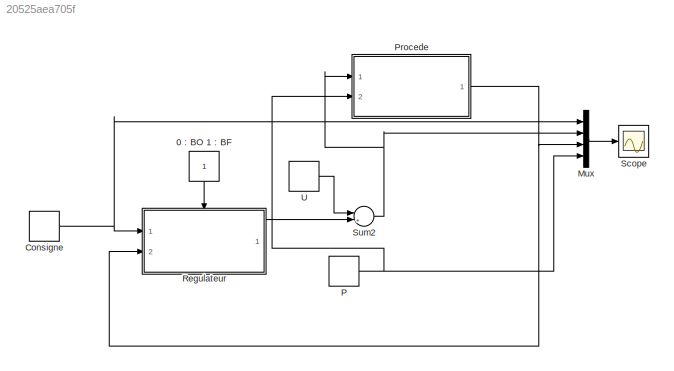
MODEL slx_20525aea705f
KIND model
CONFIG AbsTol = auto
CONFIG EnableMultiTasking = off
CONFIG FixedStep = Ts
CONFIG MaxStep = auto
CONFIG MinStep = auto
CONFIG RelTol = 1e-3
CONFIG SampleTimeConstraint = Unconstrained
CONFIG Solver = ode5
CONFIG SolverName = ode5
CONFIG StartTime = 0.0
CONFIG StopTime = 600
BLOCK [Constant] 0 : BO 1 : BF
BLOCK [DiscretePulseGenerator] Consigne
  Period = 200
  PhaseDelay = 100
  Ports = [0, 1]
  PulseType = Time based
  PulseWidth = 50
BLOCK [Mux] Mux
  DisplayOption = bar
  Ports = [4, 1]
BLOCK [DiscretePulseGenerator] P
  Amplitude = 0
  Period = 200
  PhaseDelay = 150
  Ports = [0, 1]
  PulseType = Time based
  PulseWidth = 50
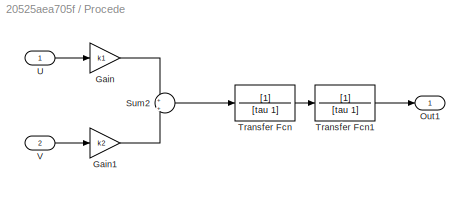
BLOCK [SubSystem] Procede
  Ports = [2, 1]
  RequestExecContextInheritance = off
BLOCK [Gain] Procede/Gain
  Gain = k1
  OutDataTypeStr = Inherit: Inherit via internal rule
  ParamDataTypeStr = Inherit: Inherit via internal rule
  SaturateOnIntegerOverflow = off
BLOCK [Gain] Procede/Gain1
  Gain = k2
  OutDataTypeStr = Inherit: Inherit via internal rule
  ParamDataTypeStr = Inherit: Inherit via internal rule
  SaturateOnIntegerOverflow = off
BLOCK [Outport] Procede/Out1
  IconDisplay = Port number
BLOCK [Sum] Procede/Sum2
  IconShape = round
  Inputs = +|+
  Ports = [2, 1]
BLOCK [TransferFcn] Procede/Transfer Fcn
  Denominator = [tau 1]
BLOCK [TransferFcn] Procede/Transfer Fcn1
  Denominator = [tau 1]
BLOCK [Inport] Procede/U
  IconDisplay = Port number
BLOCK [Inport] Procede/V
  IconDisplay = Port number
  Port = 2
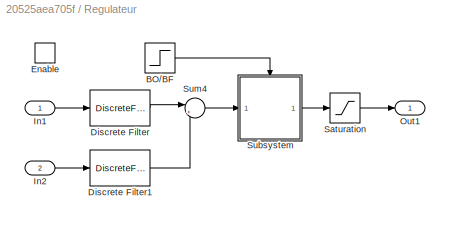
BLOCK [SubSystem] Regulateur
  Ports = [2, 1, 1]
  RequestExecContextInheritance = off
  TreatAsAtomicUnit = on
BLOCK [Step] Regulateur/BO//BF
  SampleTime = Ts
  Time = 10
BLOCK [DiscreteFilter] Regulateur/Discrete Filter
  Denominator = 1
  InputPortMap = u0
  Numerator = T
  Ports = [1, 1]
  SampleTime = Te
BLOCK [DiscreteFilter] Regulateur/Discrete Filter1
  Denominator = 1
  InputPortMap = u0
  Numerator = R
  Ports = [1, 1]
  SampleTime = Te
BLOCK [EnablePort] Regulateur/Enable
  Ports = []
BLOCK [Inport] Regulateur/In1
  IconDisplay = Port number
BLOCK [Inport] Regulateur/In2
  IconDisplay = Port number
  Port = 2
BLOCK [Outport] Regulateur/Out1
  IconDisplay = Port number
BLOCK [Saturate] Regulateur/Saturation
  InputPortMap = u0
  LowerLimit = 0-U0
  Ports = [1, 1]
  UpperLimit = 10-U0
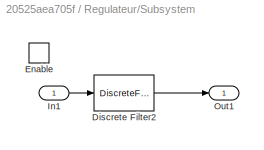
BLOCK [SubSystem] Regulateur/Subsystem
  Ports = [1, 1, 1]
  RequestExecContextInheritance = off
  TreatAsAtomicUnit = on
BLOCK [DiscreteFilter] Regulateur/Subsystem/Discrete Filter2
  Denominator = S
  InputPortMap = u0
  Numerator = 1
  Ports = [1, 1]
  SampleTime = Te
BLOCK [EnablePort] Regulateur/Subsystem/Enable
  Ports = []
BLOCK [Inport] Regulateur/Subsystem/In1
  IconDisplay = Port number
BLOCK [Outport] Regulateur/Subsystem/Out1
  IconDisplay = Port number
BLOCK [Sum] Regulateur/Sum4
  IconShape = round
  Inputs = |+-
  Ports = [2, 1]
BLOCK [Scope] Scope
  ExtModeUploadOption = log
  Floating = off
  NumInputPorts = 1
  Ports = [1]
  ScopeSpecificationString = Simulink.scopes.TimeScopeBlockCfg('CurrentConfiguration', extmgr.ConfigurationSet(extmgr.Configuration('Core','General UI',true,'ShowStatusbar',false),extmgr.Configuration('Core','Source UI',true),extmgr.Configuration('Sources','WiredSimulink',true,'DataLogging',true,'DataLoggingVariableName','X','DataLoggingSaveFormat','StructureWithTime','DataLoggingMaxPoints','80000','DataLoggingDecimation','1'...<+2209ch>
BLOCK [Sum] Sum2
  IconShape = round
  Inputs = |++
  Ports = [2, 1]
BLOCK [DiscretePulseGenerator] U
  Amplitude = 0
  Period = 200
  PhaseDelay = 100
  Ports = [0, 1]
  PulseType = Time based
  PulseWidth = 50
LINE 0 : BO 1 : BF:1 -> Regulateur:enable
NET Consigne:1 -> Mux:1, Regulateur:1
LINE Mux:1 -> Scope:1
NET P:1 -> Mux:4, Procede:2
LINE Procede/Gain1:1 -> Procede/Sum2:2
LINE Procede/Gain:1 -> Procede/Sum2:1
LINE Procede/Sum2:1 -> Procede/Transfer Fcn:1
LINE Procede/Transfer Fcn1:1 -> Procede/Out1:1
LINE Procede/Transfer Fcn:1 -> Procede/Transfer Fcn1:1
LINE Procede/U:1 -> Procede/Gain:1
LINE Procede/V:1 -> Procede/Gain1:1
NET Procede:1 -> Mux:3, Regulateur:2
LINE Regulateur/BO//BF:1 -> Regulateur/Subsystem:enable
LINE Regulateur/Discrete Filter1:1 -> Regulateur/Sum4:2
LINE Regulateur/Discrete Filter:1 -> Regulateur/Sum4:1
LINE Regulateur/In1:1 -> Regulateur/Discrete Filter:1
LINE Regulateur/In2:1 -> Regulateur/Discrete Filter1:1
LINE Regulateur/Saturation:1 -> Regulateur/Out1:1
LINE Regulateur/Subsystem/Discrete Filter2:1 -> Regulateur/Subsystem/Out1:1
LINE Regulateur/Subsystem/In1:1 -> Regulateur/Subsystem/Discrete Filter2:1
LINE Regulateur/Subsystem:1 -> Regulateur/Saturation:1
LINE Regulateur/Sum4:1 -> Regulateur/Subsystem:1
LINE Regulateur:1 -> Sum2:2
NET Sum2:1 -> Mux:2, Procede:1
LINE U:1 -> Sum2:1
note: NET lines group one-source signal fan-out (src -> all destinations, sorted); 1:1 wires keep LINE
